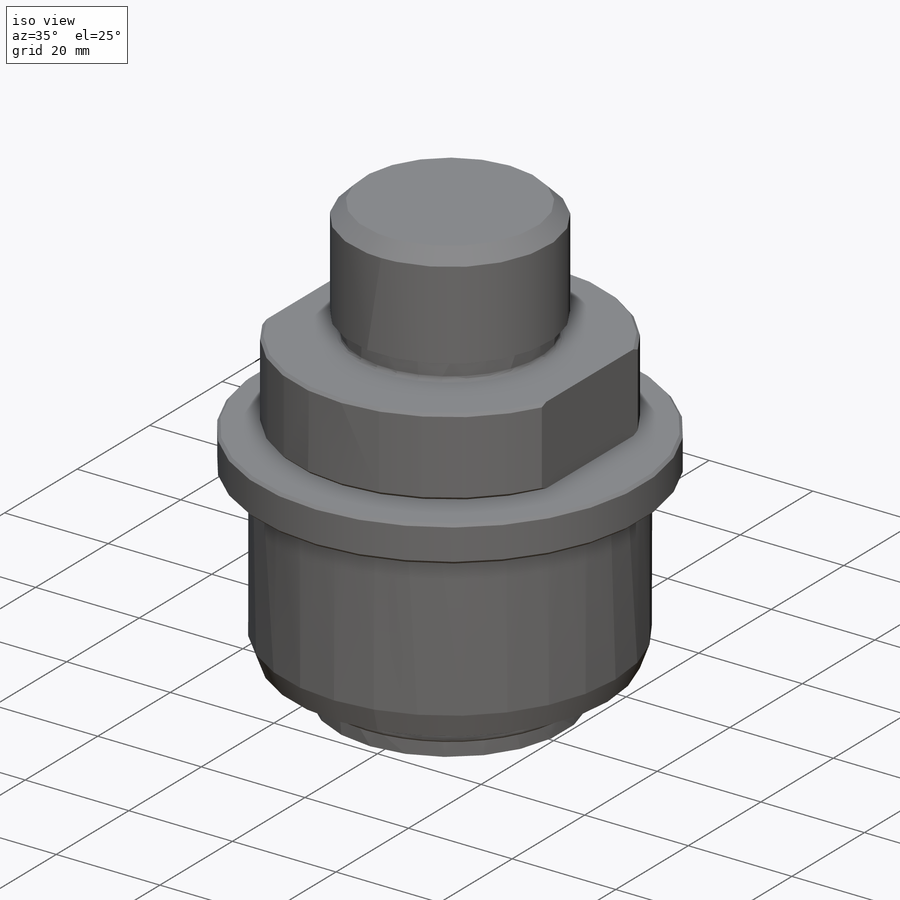
[diagram: iso view]
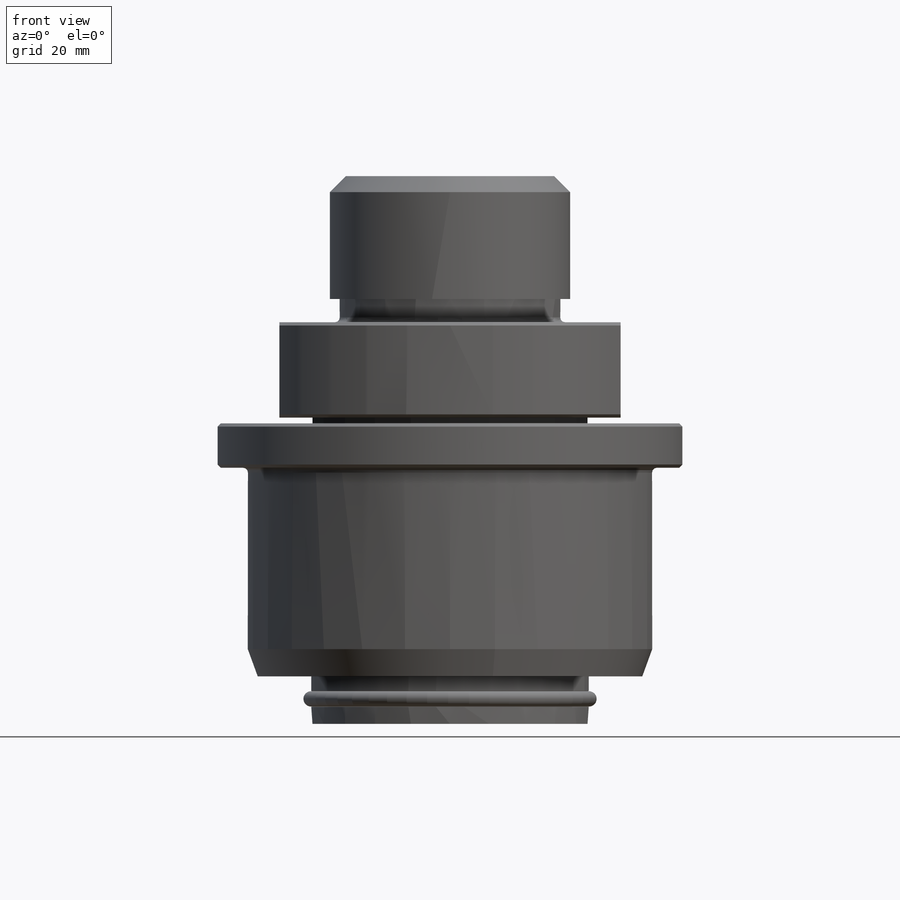
[diagram: front view]
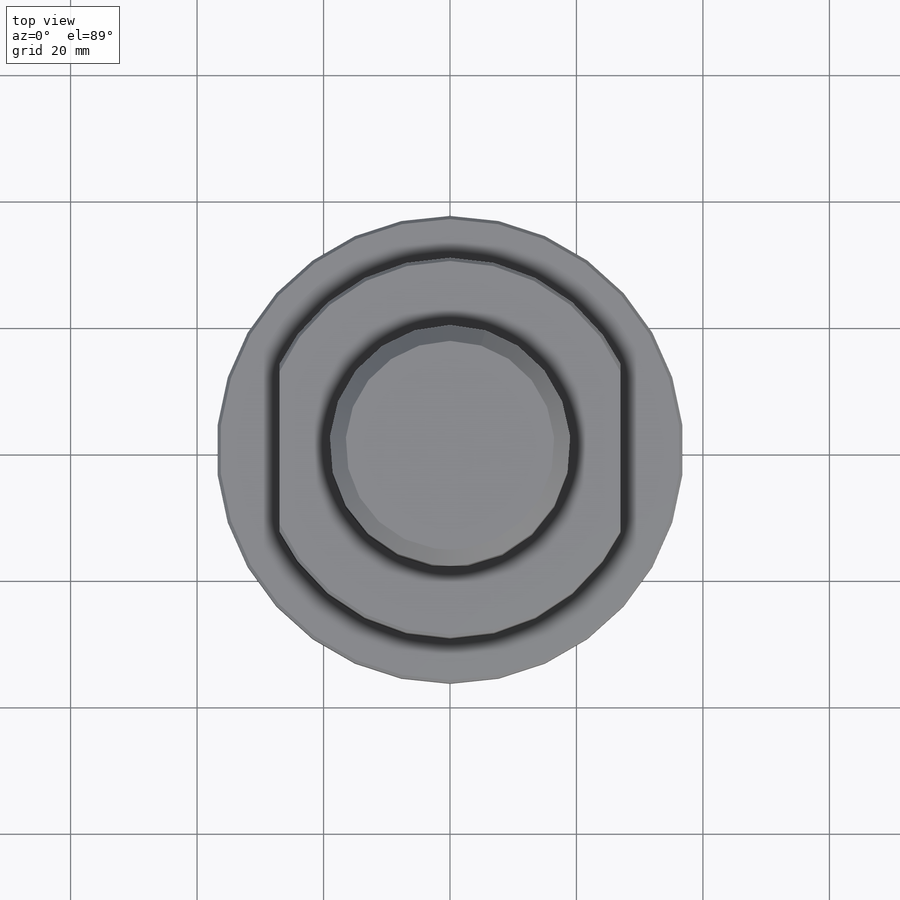
[diagram: top view]
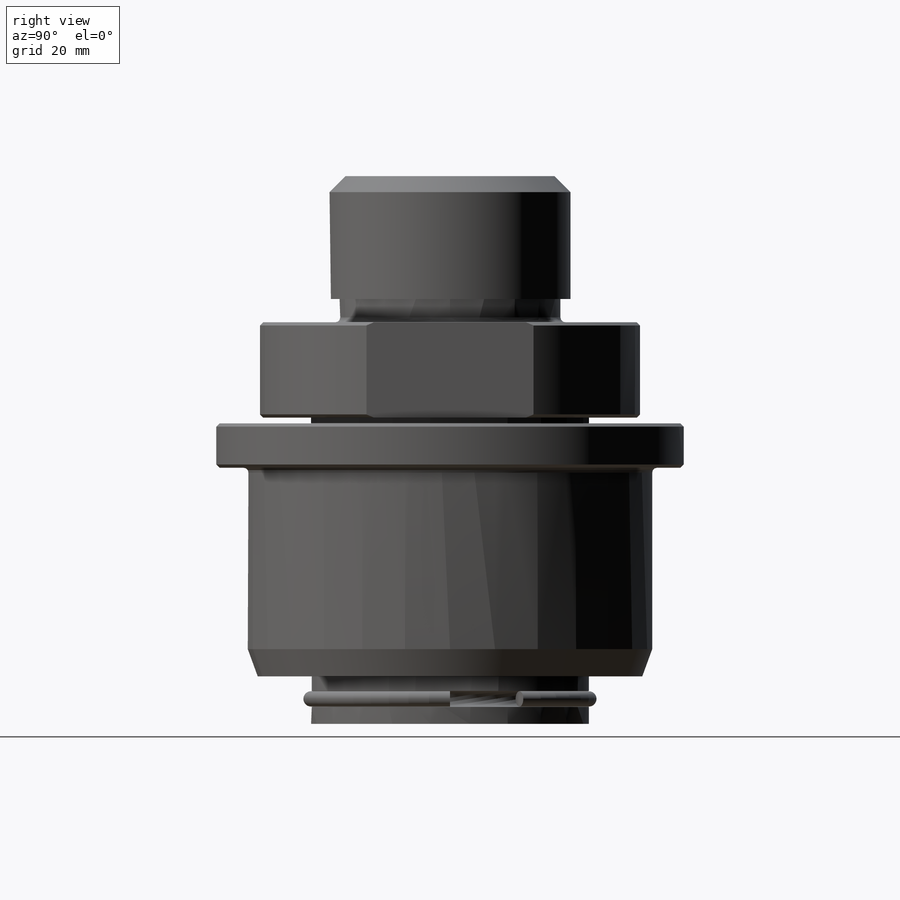
[diagram: right view]
SOLIDWORKS PART (.sldprt)
format: sldprt  version: not decoded by parser v0  size: 248,832 bytes
history: native  units: mm
features: sketch x4, revolve x3, chamfer x3, material x1, cut_extrude x1 (+13 scaffold rows collapsed)
feature tree (25):
  scaffold x13  (default folders/planes/origin — collapsed)
  material  "Material <not specified>"
  sketch  "Sketch1"  dims[c1.D14=1.27mm c1.D15=1.524mm c1.D16=0.762mm c1.D1=38.1mm c1.D2=23.114mm c1.D3=15.0876mm c1.D4=63.5254mm c1.D5=43.942mm c1.D6=32.004mm c1.D7=3.683mm c1.D8=34.925mm c1.D9=30.1752mm c1.D10=7.874mm c1.D11=~0.856569mm c2.D11=45.0deg c2.D12=9.398mm c2.D13=7.493mm c2.D10=16.51mm c3.D13=2.6924mm c3.D6=60.0964mm]
  revolve  "Revolve1"  Angle=360deg
  chamfer  "Chamfer1"  Distance=0.508mm Angle=45deg
  chamfer  "Chamfer2"  Distance=2.54mm Angle=45deg
  sketch  "Sketch4"  dims[D1=26.9875mm D2=26.9875mm]
  cut_extrude  "Cut-Extrude1"  [1 undecoded]
  sketch  "Sketch2"  dims[c1.D13=1.016mm c1.D14=0.762mm c1.D1=40.005mm c1.D2=7.0104mm c1.D3=63.9572mm c1.D4=73.914mm c1.D5=4.318mm c1.D6=~6.064089mm c2.D6=20.0deg c2.D7=~60.813953mm c2.D8=23.0124mm c2.D9=0.0508mm c2.D10=7.6454mm c2.D11=7.5184mm c2.D12=50.0634mm]
  revolve  "Revolve2"  Angle=360deg
  chamfer  "Chamfer3"  Distance=0.508mm Angle=45deg
  sketch  "Sketch3"  dims[D1=0.0508mm]
  revolve  "Revolve3"  Angle=330deg
decode coverage: 10 of 11 modeling features carry decoded parameters
note: ~ marks probable driven/reference dimensions
note: 1 parameter value undecoded
note: suppression state not decoded; provenance and decode notes live in map.json
